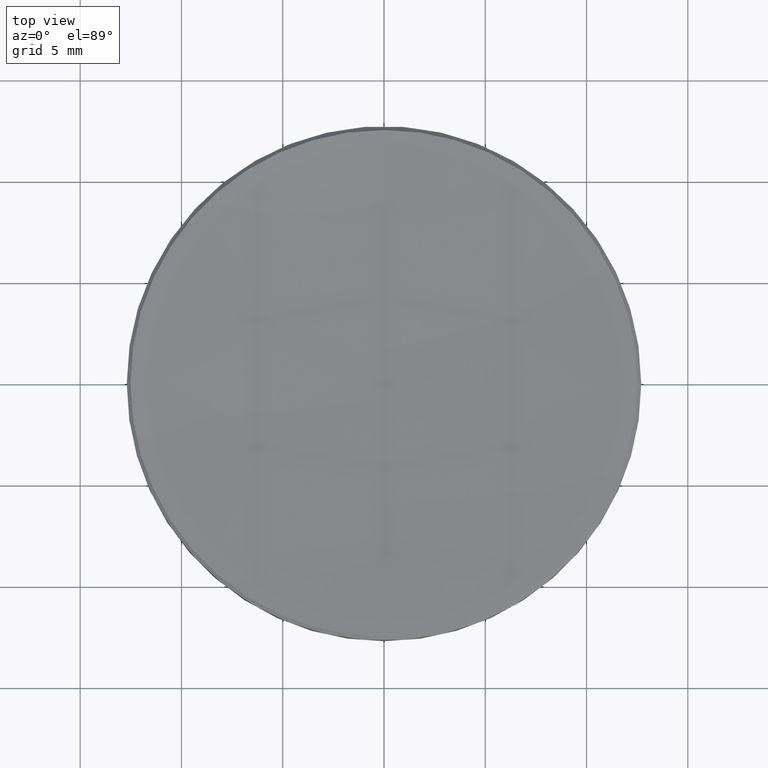
[diagram: clean part render]
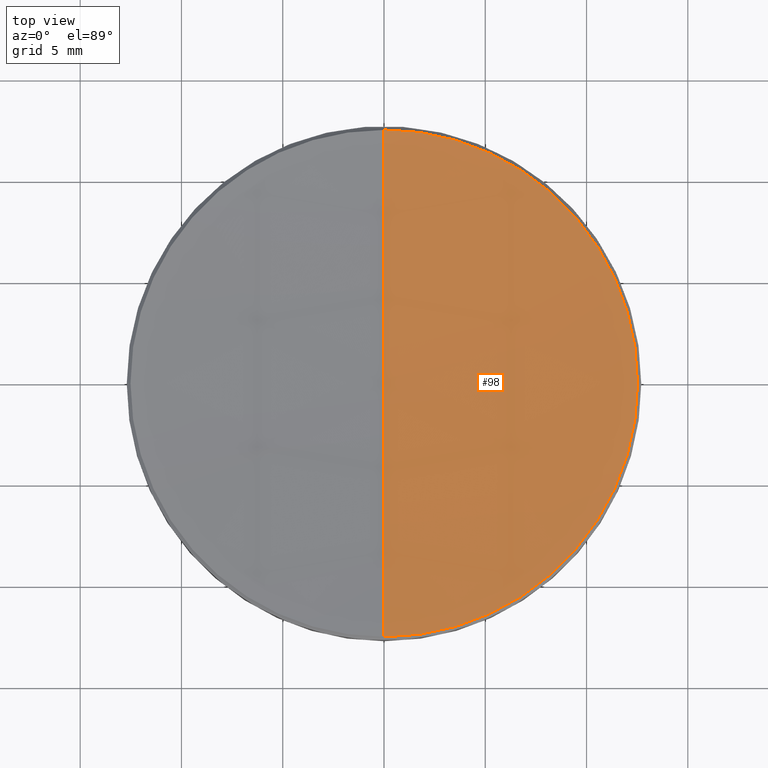
[diagram: same view with one face highlighted and labeled with its STEP entity id]
A machine part, top view. The second image highlights one B-rep face of the part: STEP entity #98.
In plain terms, the highlighted spherical surface has radius 149.76 mm.
Its self-contained STEP definition (entity closure, byte-faithful):
#1 = CARTESIAN_POINT ( 'NONE',  ( 0.000000000000000000, 0.000000000000000000, 155.2205334396041110 ) ) ;
#11 = CIRCLE ( 'NONE', #57, 12.51558093570960040 ) ;
#18 = CARTESIAN_POINT ( 'NONE',  ( 0.000000000000000000, 12.51558093570944230, 5.984419064290369406 ) ) ;
#19 = AXIS2_PLACEMENT_3D ( 'NONE', #46, #133, #111 ) ;
#36 = VERTEX_POINT ( 'NONE', #64 ) ;
#39 = EDGE_LOOP ( 'NONE', ( #41, #76, #128, #261 ) ) ;
#41 = ORIENTED_EDGE ( 'NONE', *, *, #82, .F. ) ;
#44 = DIRECTION ( 'NONE',  ( 1.000000000000000000, 0.000000000000000000, 0.000000000000000000 ) ) ;
#46 = CARTESIAN_POINT ( 'NONE',  ( 0.000000000000000000, 0.000000000000000000, 155.2205334396041110 ) ) ;
#49 = DIRECTION ( 'NONE',  ( -0.000000000000000000, -0.000000000000000000, 1.000000000000000000 ) ) ;
#57 = AXIS2_PLACEMENT_3D ( 'NONE', #239, #49, #258 ) ;
#60 = DIRECTION ( 'NONE',  ( 0.000000000000000000, 0.000000000000000000, -1.000000000000000000 ) ) ;
#61 = VERTEX_POINT ( 'NONE', #85 ) ;
#64 = CARTESIAN_POINT ( 'NONE',  ( 12.51558093570960040, 1.544009024077889242E-15, 5.984419064290369406 ) ) ;
#76 = ORIENTED_EDGE ( 'NONE', *, *, #234, .T. ) ;
#82 = EDGE_CURVE ( 'NONE', #214, #228, #249, .T. ) ;
#85 = CARTESIAN_POINT ( 'NONE',  ( -1.532716613238620527E-15, -12.51558093570944230, 5.984419064290369406 ) ) ;
#98 = ADVANCED_FACE ( 'NONE', ( #150 ), #259, .F. ) ;
#99 = AXIS2_PLACEMENT_3D ( 'NONE', #257, #236, #60 ) ;
#103 = AXIS2_PLACEMENT_3D ( 'NONE', #167, #190, #44 ) ;
#110 = DIRECTION ( 'NONE',  ( -1.224646799147353207E-16, -1.000000000000000000, 0.000000000000000000 ) ) ;
#111 = DIRECTION ( 'NONE',  ( 0.000000000000000000, 1.000000000000000000, 0.000000000000000000 ) ) ;
#128 = ORIENTED_EDGE ( 'NONE', *, *, #225, .T. ) ;
#133 = DIRECTION ( 'NONE',  ( -1.000000000000000000, 0.000000000000000000, 0.000000000000000000 ) ) ;
#150 = FACE_OUTER_BOUND ( 'NONE', #39, .T. ) ;
#162 = CIRCLE ( 'NONE', #103, 12.51558093570960040 ) ;
#167 = CARTESIAN_POINT ( 'NONE',  ( 0.000000000000000000, 0.000000000000000000, 5.984419064290369406 ) ) ;
#190 = DIRECTION ( 'NONE',  ( -0.000000000000000000, -0.000000000000000000, 1.000000000000000000 ) ) ;
#214 = VERTEX_POINT ( 'NONE', #215 ) ;
#215 = CARTESIAN_POINT ( 'NONE',  ( 0.000000000000000000, 9.170155232015382598E-15, 5.460533439604065009 ) ) ;
#225 = EDGE_CURVE ( 'NONE', #61, #36, #11, .T. ) ;
#226 = CIRCLE ( 'NONE', #276, 149.7600000000000193 ) ;
#228 = VERTEX_POINT ( 'NONE', #18 ) ;
#234 = EDGE_CURVE ( 'NONE', #214, #61, #226, .T. ) ;
#236 = DIRECTION ( 'NONE',  ( 1.000000000000000000, 0.000000000000000000, 0.000000000000000000 ) ) ;
#239 = CARTESIAN_POINT ( 'NONE',  ( 0.000000000000000000, 0.000000000000000000, 5.984419064290369406 ) ) ;
#249 = CIRCLE ( 'NONE', #99, 149.7600000000000193 ) ;
#256 = EDGE_CURVE ( 'NONE', #36, #228, #162, .T. ) ;
#257 = CARTESIAN_POINT ( 'NONE',  ( 0.000000000000000000, 0.000000000000000000, 155.2205334396041110 ) ) ;
#258 = DIRECTION ( 'NONE',  ( 1.000000000000000000, 0.000000000000000000, 0.000000000000000000 ) ) ;
#259 = SPHERICAL_SURFACE ( 'NONE', #19, 149.7600000000000193 ) ;
#261 = ORIENTED_EDGE ( 'NONE', *, *, #256, .T. ) ;
#276 = AXIS2_PLACEMENT_3D ( 'NONE', #1, #281, #110 ) ;
#281 = DIRECTION ( 'NONE',  ( -1.000000000000000000, 1.224646799147353207E-16, 0.000000000000000000 ) ) ;